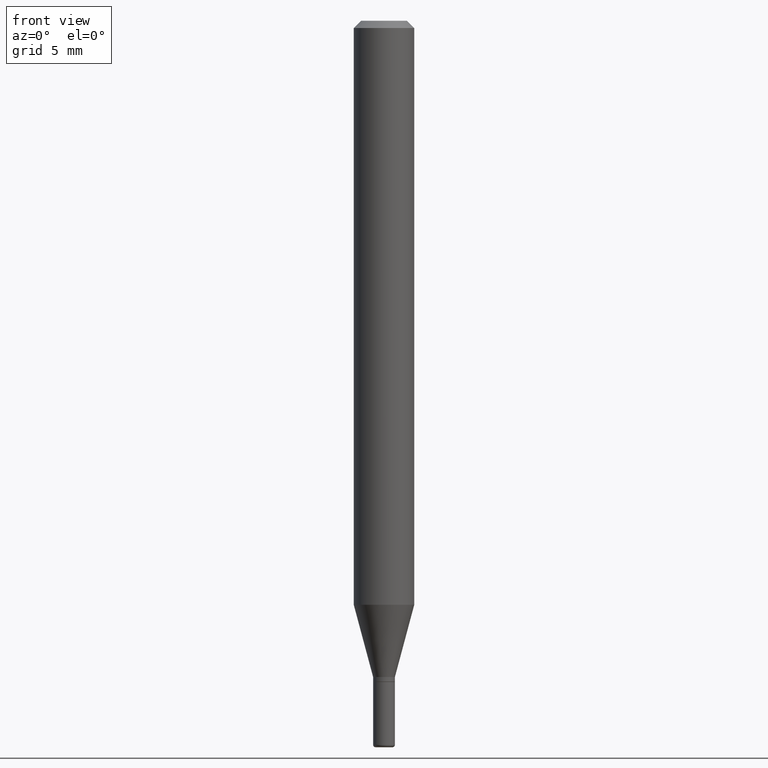
[diagram: clean part render]
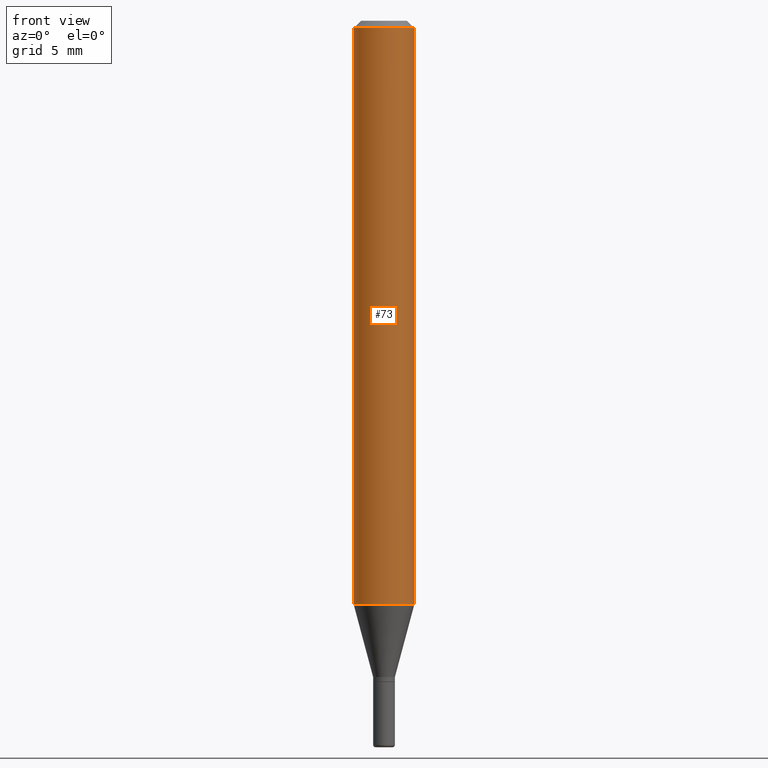
[diagram: same view with one face highlighted and labeled with its STEP entity id]
A machine part, front view. The second image highlights one B-rep face of the part: STEP entity #73.
In plain terms, the highlighted cylindrical surface (edge-blend (fillet) strip) has radius 1.5875 mm, axis along (-0, 0, 1).
Its self-contained STEP definition (entity closure, byte-faithful):
#5 = VERTEX_POINT ( 'NONE', #52 ) ;
#7 = AXIS2_PLACEMENT_3D ( 'NONE', #255, #406, #297 ) ;
#24 = CARTESIAN_POINT ( 'NONE',  ( 0.06250000000000000000, -4.646176951478207651E-15, -1.205717967697245596 ) ) ;
#27 = CARTESIAN_POINT ( 'NONE',  ( -0.06250000000000000000, 4.440892098500626162E-16, -3.074334431409316114E-30 ) ) ;
#43 = CARTESIAN_POINT ( 'NONE',  ( 0.06250000000000000000, -4.364351673553916694E-16, 3.047610484872459871E-30 ) ) ;
#52 = CARTESIAN_POINT ( 'NONE',  ( 0.06250000000000000000, -4.888073874380378612E-16, -0.01499999999999970281 ) ) ;
#66 = DIRECTION ( 'NONE',  ( 1.000000000000000000, -6.982962677686266711E-15, 0.000000000000000000 ) ) ;
#73 = ADVANCED_FACE ( 'NONE', ( #515 ), #437, .T. ) ;
#76 = CARTESIAN_POINT ( 'NONE',  ( 2.948545679060552191E-29, -4.209741784122815192E-15, -1.205717967697245596 ) ) ;
#98 = CIRCLE ( 'NONE', #330, 0.06250000000000000000 ) ;
#108 = EDGE_CURVE ( 'NONE', #440, #5, #449, .T. ) ;
#130 = VERTEX_POINT ( 'NONE', #442 ) ;
#191 = DIRECTION ( 'NONE',  ( -2.445468806185136877E-29, 3.491481338843145188E-15, 1.000000000000000000 ) ) ;
#194 = DIRECTION ( 'NONE',  ( -2.445468806185136597E-29, 3.491481338843145583E-15, 1.000000000000000000 ) ) ;
#205 = DIRECTION ( 'NONE',  ( -2.445468806185136877E-29, 3.491481338843145188E-15, 1.000000000000000000 ) ) ;
#206 = VERTEX_POINT ( 'NONE', #295 ) ;
#211 = ORIENTED_EDGE ( 'NONE', *, *, #268, .T. ) ;
#238 = AXIS2_PLACEMENT_3D ( 'NONE', #345, #194, #66 ) ;
#255 = CARTESIAN_POINT ( 'NONE',  ( 0.000000000000000000, 0.000000000000000000, 0.000000000000000000 ) ) ;
#268 = EDGE_CURVE ( 'NONE', #130, #440, #98, .T. ) ;
#292 = ORIENTED_EDGE ( 'NONE', *, *, #108, .T. ) ;
#295 = CARTESIAN_POINT ( 'NONE',  ( -0.06250000000000000000, -1.686967792252668322E-15, -0.01499999999999970281 ) ) ;
#297 = DIRECTION ( 'NONE',  ( 1.000000000000000000, -6.982962677686266711E-15, 4.876176775795935793E-29 ) ) ;
#330 = AXIS2_PLACEMENT_3D ( 'NONE', #76, #459, #503 ) ;
#335 = ORIENTED_EDGE ( 'NONE', *, *, #424, .F. ) ;
#345 = CARTESIAN_POINT ( 'NONE',  ( 3.668203209277632395E-31, -5.237222008264614861E-17, -0.01499999999999970281 ) ) ;
#347 = VECTOR ( 'NONE', #205, 39.37007874015748143 ) ;
#388 = VECTOR ( 'NONE', #191, 39.37007874015748143 ) ;
#389 = LINE ( 'NONE', #27, #388 ) ;
#405 = ORIENTED_EDGE ( 'NONE', *, *, #463, .F. ) ;
#406 = DIRECTION ( 'NONE',  ( -2.445468806185136597E-29, 3.491481338843145583E-15, 1.000000000000000000 ) ) ;
#424 = EDGE_CURVE ( 'NONE', #206, #5, #485, .T. ) ;
#437 = CYLINDRICAL_SURFACE ( 'NONE', #7, 0.06250000000000000000 ) ;
#440 = VERTEX_POINT ( 'NONE', #24 ) ;
#442 = CARTESIAN_POINT ( 'NONE',  ( -0.06250000000000000000, -3.765652574272752576E-15, -1.205717967697245596 ) ) ;
#449 = LINE ( 'NONE', #43, #347 ) ;
#459 = DIRECTION ( 'NONE',  ( -2.445468806185136597E-29, 3.491481338843145583E-15, 1.000000000000000000 ) ) ;
#463 = EDGE_CURVE ( 'NONE', #130, #206, #389, .T. ) ;
#465 = EDGE_LOOP ( 'NONE', ( #405, #211, #292, #335 ) ) ;
#485 = CIRCLE ( 'NONE', #238, 0.06250000000000000000 ) ;
#503 = DIRECTION ( 'NONE',  ( 1.000000000000000000, -6.982962677686270655E-15, 0.000000000000000000 ) ) ;
#515 = FACE_OUTER_BOUND ( 'NONE', #465, .T. ) ;